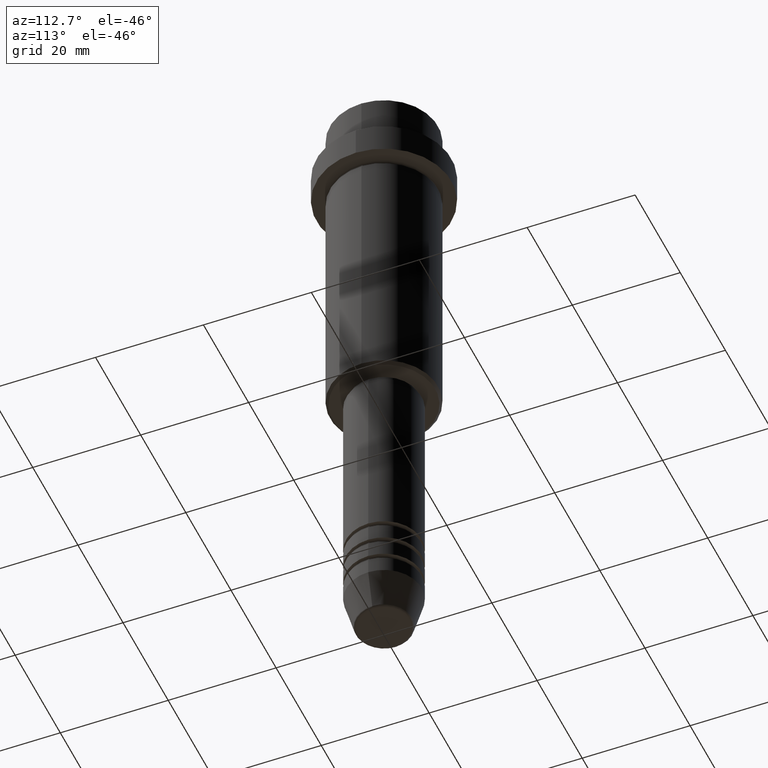
[diagram: clean part render]
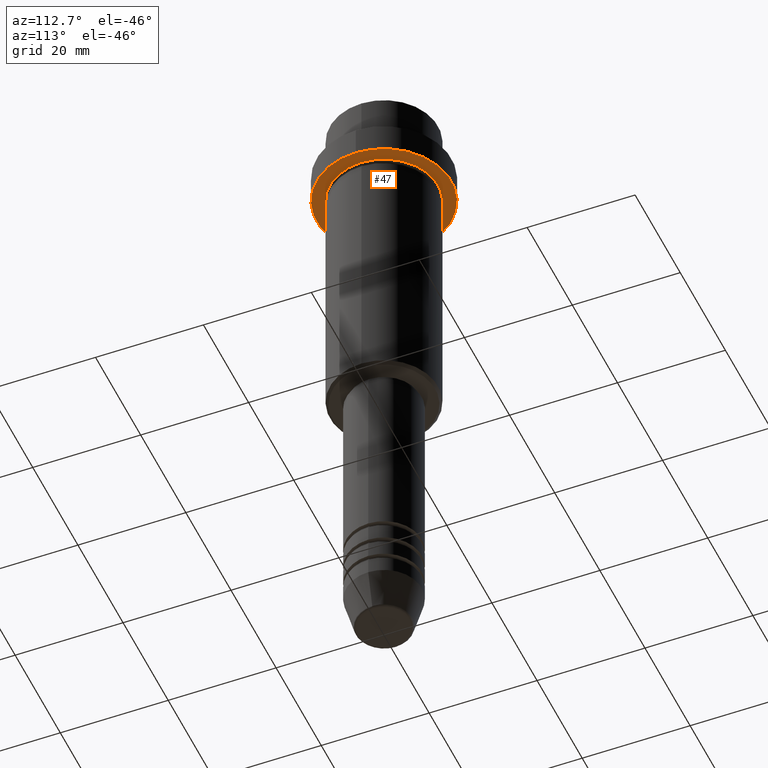
[diagram: same view with one face highlighted and labeled with its STEP entity id]
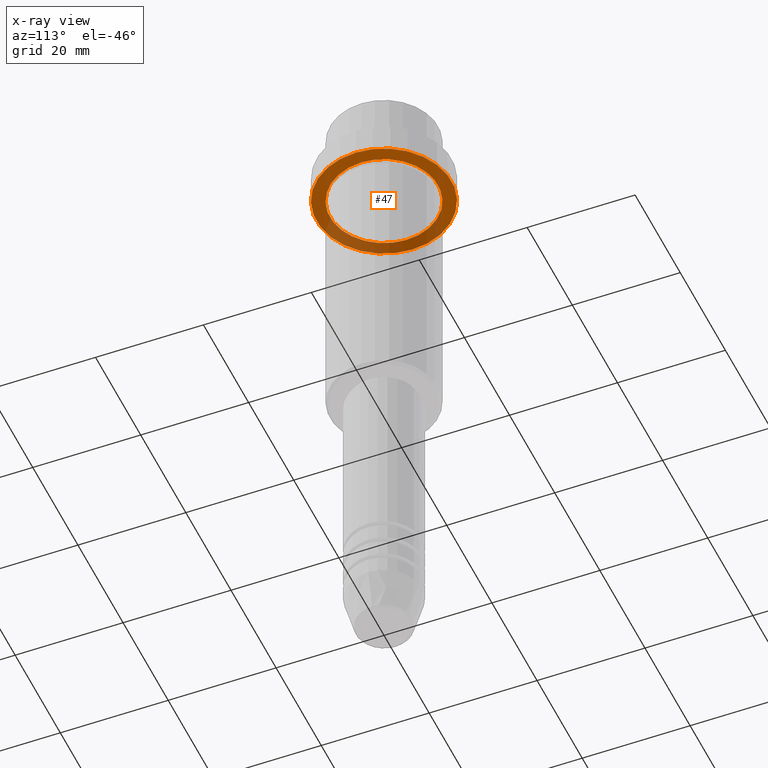
[diagram: x-ray of the same camera — body ghosted, the highlighted face saturated]
A machine part, auxiliary view. The second image highlights one B-rep face of the part: STEP entity #47.
The next image is the same camera in x-ray: the body ghosted, the highlighted face saturated — about 33% of this face is hidden behind the body in this view.
In plain terms, the highlighted planar face has unit normal (0, 0, -1).
Its self-contained STEP definition (entity closure, byte-faithful):
#17 = CIRCLE ( 'NONE', #866, 12.50000000000000000 ) ;
#25 = DIRECTION ( 'NONE',  ( -1.000000000000000000, 0.000000000000000000, -0.000000000000000000 ) ) ;
#47 = ADVANCED_FACE ( 'NONE', ( #829, #662 ), #117, .T. ) ;
#52 = DIRECTION ( 'NONE',  ( -0.000000000000000000, -0.000000000000000000, 1.000000000000000000 ) ) ;
#117 = PLANE ( 'NONE',  #528 ) ;
#212 = CARTESIAN_POINT ( 'NONE',  ( 9.999999999999992895, 1.224646799147352468E-15, -15.00000000000000000 ) ) ;
#229 = ORIENTED_EDGE ( 'NONE', *, *, #664, .T. ) ;
#261 = VERTEX_POINT ( 'NONE', #1172 ) ;
#306 = CARTESIAN_POINT ( 'NONE',  ( 0.000000000000000000, 0.000000000000000000, -15.00000000000000000 ) ) ;
#310 = CIRCLE ( 'NONE', #1143, 9.999999999999992895 ) ;
#319 = EDGE_LOOP ( 'NONE', ( #1104, #229 ) ) ;
#349 = DIRECTION ( 'NONE',  ( -0.000000000000000000, -0.000000000000000000, 1.000000000000000000 ) ) ;
#363 = CARTESIAN_POINT ( 'NONE',  ( 0.000000000000000000, 12.50000000000000000, -15.00000000000000000 ) ) ;
#434 = VERTEX_POINT ( 'NONE', #1042 ) ;
#463 = ORIENTED_EDGE ( 'NONE', *, *, #681, .F. ) ;
#528 = AXIS2_PLACEMENT_3D ( 'NONE', #363, #893, #25 ) ;
#531 = CIRCLE ( 'NONE', #562, 12.50000000000000000 ) ;
#562 = AXIS2_PLACEMENT_3D ( 'NONE', #636, #52, #615 ) ;
#615 = DIRECTION ( 'NONE',  ( 1.000000000000000000, 0.000000000000000000, 0.000000000000000000 ) ) ;
#636 = CARTESIAN_POINT ( 'NONE',  ( 0.000000000000000000, 0.000000000000000000, -15.00000000000000000 ) ) ;
#643 = VERTEX_POINT ( 'NONE', #1373 ) ;
#662 = FACE_OUTER_BOUND ( 'NONE', #747, .T. ) ;
#664 = EDGE_CURVE ( 'NONE', #1171, #261, #310, .T. ) ;
#681 = EDGE_CURVE ( 'NONE', #643, #434, #531, .T. ) ;
#722 = DIRECTION ( 'NONE',  ( -0.000000000000000000, -0.000000000000000000, 1.000000000000000000 ) ) ;
#747 = EDGE_LOOP ( 'NONE', ( #463, #1398 ) ) ;
#764 = CIRCLE ( 'NONE', #1158, 9.999999999999992895 ) ;
#788 = CARTESIAN_POINT ( 'NONE',  ( 0.000000000000000000, 0.000000000000000000, -15.00000000000000000 ) ) ;
#829 = FACE_BOUND ( 'NONE', #319, .T. ) ;
#866 = AXIS2_PLACEMENT_3D ( 'NONE', #1332, #349, #1225 ) ;
#893 = DIRECTION ( 'NONE',  ( 0.000000000000000000, 0.000000000000000000, -1.000000000000000000 ) ) ;
#917 = DIRECTION ( 'NONE',  ( -0.000000000000000000, -0.000000000000000000, 1.000000000000000000 ) ) ;
#976 = EDGE_CURVE ( 'NONE', #434, #643, #17, .T. ) ;
#1042 = CARTESIAN_POINT ( 'NONE',  ( -12.50000000000000000, 1.530808498934191521E-15, -15.00000000000000000 ) ) ;
#1104 = ORIENTED_EDGE ( 'NONE', *, *, #1295, .T. ) ;
#1143 = AXIS2_PLACEMENT_3D ( 'NONE', #306, #722, #1157 ) ;
#1157 = DIRECTION ( 'NONE',  ( -1.000000000000000000, 0.000000000000000000, 0.000000000000000000 ) ) ;
#1158 = AXIS2_PLACEMENT_3D ( 'NONE', #788, #917, #1344 ) ;
#1171 = VERTEX_POINT ( 'NONE', #212 ) ;
#1172 = CARTESIAN_POINT ( 'NONE',  ( -9.999999999999992895, 0.000000000000000000, -15.00000000000000000 ) ) ;
#1225 = DIRECTION ( 'NONE',  ( 1.000000000000000000, 0.000000000000000000, 0.000000000000000000 ) ) ;
#1295 = EDGE_CURVE ( 'NONE', #261, #1171, #764, .T. ) ;
#1332 = CARTESIAN_POINT ( 'NONE',  ( 0.000000000000000000, 0.000000000000000000, -15.00000000000000000 ) ) ;
#1344 = DIRECTION ( 'NONE',  ( -1.000000000000000000, 0.000000000000000000, 0.000000000000000000 ) ) ;
#1373 = CARTESIAN_POINT ( 'NONE',  ( 12.50000000000000000, 0.000000000000000000, -15.00000000000000000 ) ) ;
#1398 = ORIENTED_EDGE ( 'NONE', *, *, #976, .F. ) ;